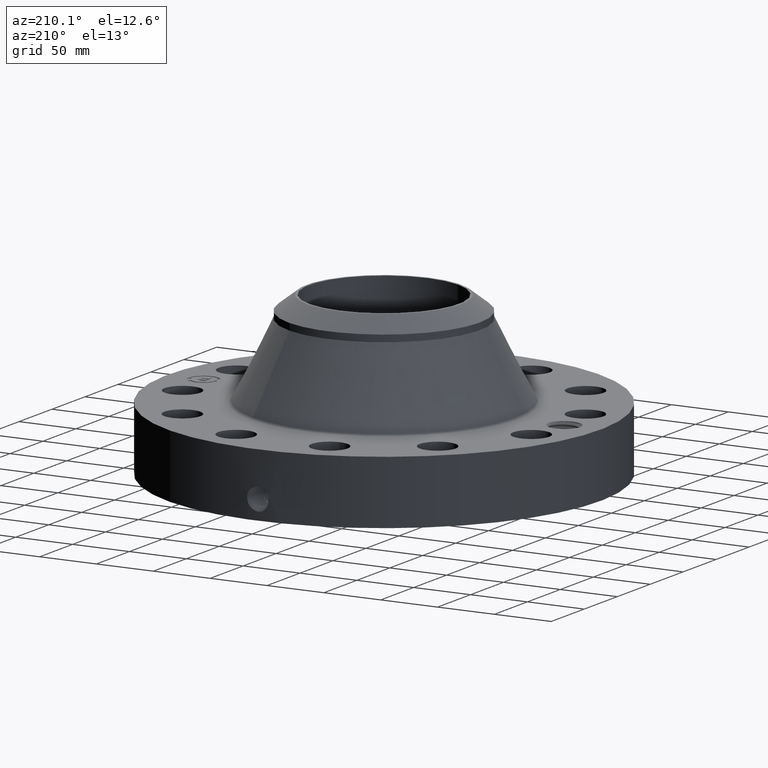
[diagram: clean part render]
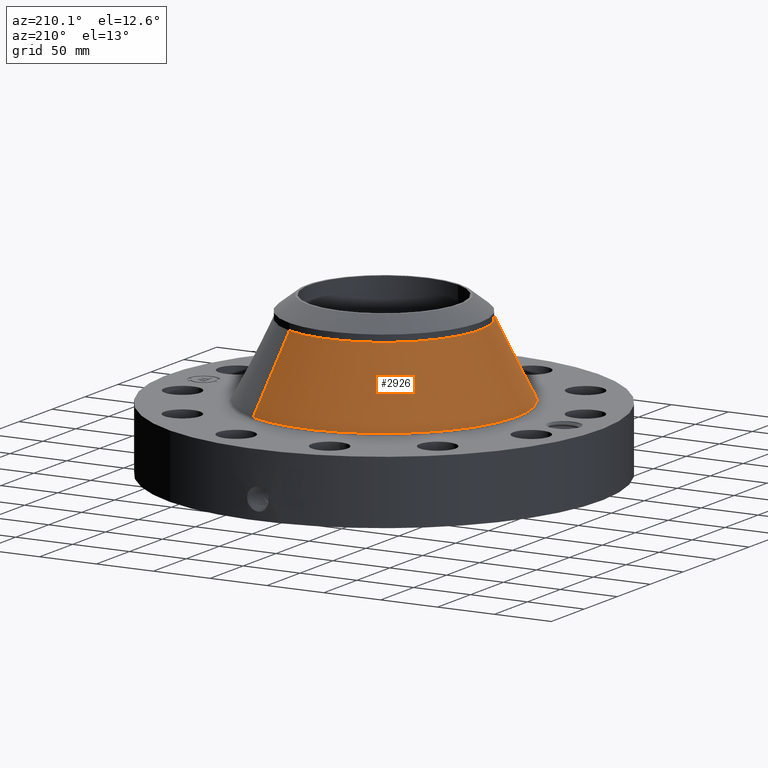
[diagram: same view with one face highlighted and labeled with its STEP entity id]
A machine part, auxiliary view. The second image highlights one B-rep face of the part: STEP entity #2926.
In plain terms, the highlighted conical surface has half-angle 26.914 deg.
Its self-contained STEP definition (entity closure, byte-faithful):
#2172=AXIS2_PLACEMENT_3D('Circle Axis2P3D',#2170,#2171,$) ;
#2887=AXIS2_PLACEMENT_3D('Cone Axis2P3D',#2884,#2885,#2886) ;
#2917=AXIS2_PLACEMENT_3D('Circle Axis2P3D',#2915,#2916,$) ;
#2148=CARTESIAN_POINT('Vertex',(2.20135788299,4.02955857592,2.50568142795)) ;
#2155=CARTESIAN_POINT('Vertex',(-2.20135788299,-4.02955857592,2.50568142795)) ;
#2170=CARTESIAN_POINT('Axis2P3D Location',(0.,0.,2.50568142795)) ;
#2884=CARTESIAN_POINT('Axis2P3D Location',(0.,0.,5.02057255363)) ;
#2889=CARTESIAN_POINT('Line Origine',(1.89532677174,3.4693723843,3.76312699079)) ;
#2893=CARTESIAN_POINT('Vertex',(1.58929566048,2.90918619268,5.02057255363)) ;
#2900=CARTESIAN_POINT('Vertex',(-1.58929566048,-2.90918619268,5.02057255363)) ;
#2903=CARTESIAN_POINT('Line Origine',(-1.89532677174,-3.4693723843,3.76312699079)) ;
#2915=CARTESIAN_POINT('Axis2P3D Location',(0.,0.,5.02057255363)) ;
#2171=DIRECTION('Axis2P3D Direction',(0.,0.,-0.0393700787402)) ;
#2885=DIRECTION('Axis2P3D Direction',(0.,0.,-0.0393700787402)) ;
#2886=DIRECTION('Axis2P3D XDirection',(-0.0188750212049,-0.0345504945626,0.)) ;
#2890=DIRECTION('Vector Direction',(0.00854386832872,0.0156394460716,-0.0351057422733)) ;
#2904=DIRECTION('Vector Direction',(-0.00854386832872,-0.0156394460716,-0.0351057422733)) ;
#2916=DIRECTION('Axis2P3D Direction',(0.,0.,-0.0393700787402)) ;
#2891=VECTOR('Line Direction',#2890,0.0393700787402) ;
#2905=VECTOR('Line Direction',#2904,0.0393700787402) ;
#2921=ORIENTED_EDGE('',*,*,#2174,.F.) ;
#2922=ORIENTED_EDGE('',*,*,#2907,.T.) ;
#2923=ORIENTED_EDGE('',*,*,#2919,.T.) ;
#2924=ORIENTED_EDGE('',*,*,#2895,.F.) ;
#2926=ADVANCED_FACE('PartBody',(#2925),#2888,.T.) ;
#2173=CIRCLE('generated circle',#2172,4.59165752705) ;
#2918=CIRCLE('generated circle',#2917,3.31500000001) ;
#2888=CONICAL_SURFACE('Cone',#2887,3.31500000001,0.469740341875) ;
#2174=EDGE_CURVE('',#2156,#2149,#2173,.T.) ;
#2895=EDGE_CURVE('',#2149,#2894,#2892,.F.) ;
#2907=EDGE_CURVE('',#2156,#2901,#2906,.F.) ;
#2919=EDGE_CURVE('',#2901,#2894,#2918,.T.) ;
#2920=EDGE_LOOP('',(#2921,#2922,#2923,#2924)) ;
#2925=FACE_OUTER_BOUND('',#2920,.T.) ;
#2892=LINE('Line',#2889,#2891) ;
#2906=LINE('Line',#2903,#2905) ;
#2149=VERTEX_POINT('',#2148) ;
#2156=VERTEX_POINT('',#2155) ;
#2894=VERTEX_POINT('',#2893) ;
#2901=VERTEX_POINT('',#2900) ;